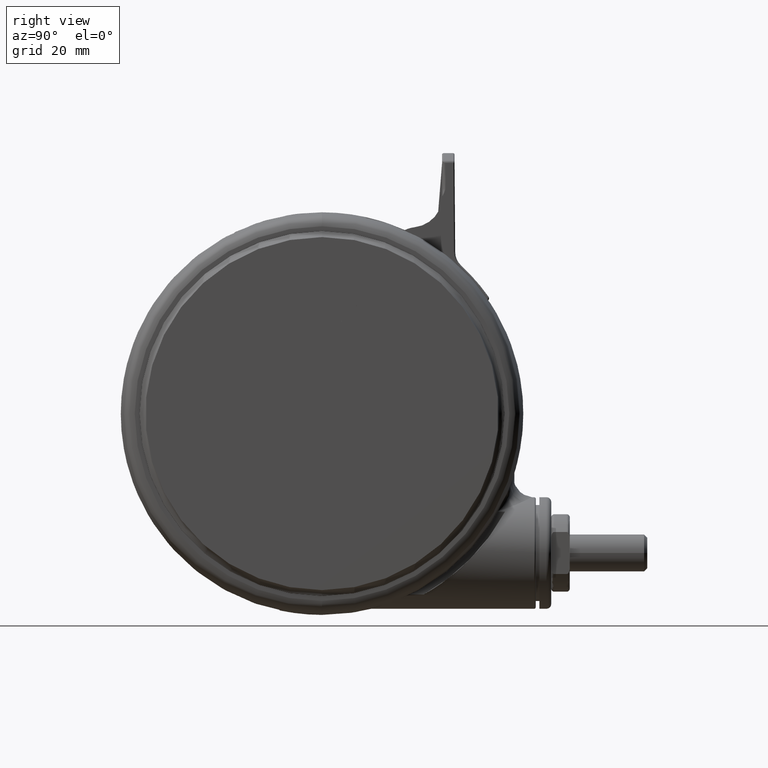
[diagram: clean part render]
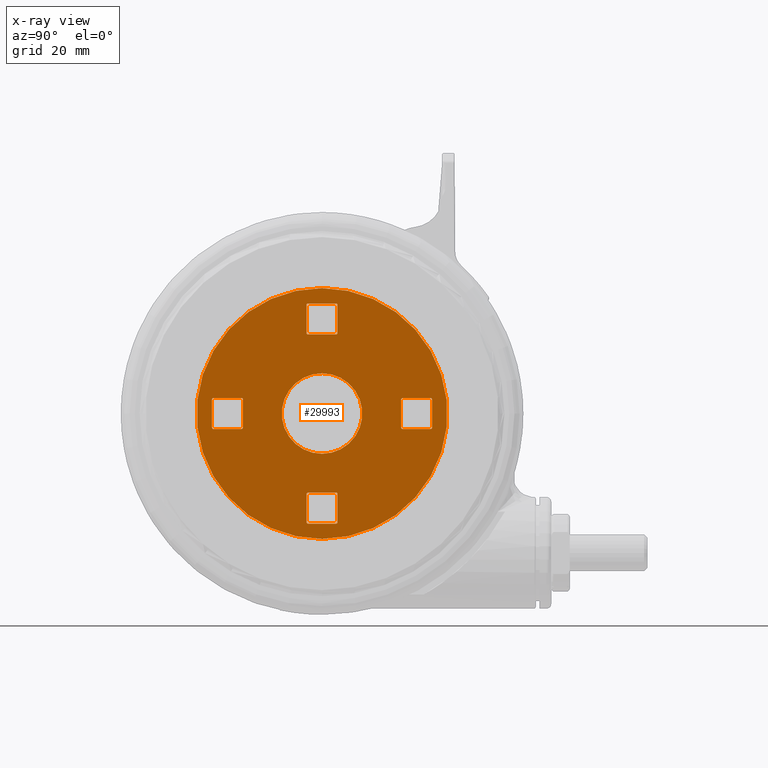
[diagram: x-ray — body ghosted, one internal face saturated and labeled with its STEP entity id]
A machine part, right view, then the same camera in x-ray: the body is ghosted and one INTERNAL B-rep face — a face not visible from any outside direction — is saturated and labeled: STEP entity #29993.
In plain terms, the highlighted planar face has unit normal (-1, 0, 0).
Its self-contained STEP definition (entity closure, byte-faithful):
#452 = VERTEX_POINT ( 'NONE', #48839 ) ;
#802 = EDGE_CURVE ( 'NONE', #37087, #3810, #38036, .T. ) ;
#1422 = DIRECTION ( 'NONE',  ( 0.0000000000000000000, 0.0000000000000000000, -1.000000000000000000 ) ) ;
#1532 = ORIENTED_EDGE ( 'NONE', *, *, #41960, .F. ) ;
#1692 = CARTESIAN_POINT ( 'NONE',  ( -35.54999999999996900, 4.499999999999847200, -3.800000000000094900 ) ) ;
#1732 = DIRECTION ( 'NONE',  ( -1.047444401652940200E-014, 1.000000000000000000, 0.0000000000000000000 ) ) ;
#1802 = CARTESIAN_POINT ( 'NONE',  ( 25.55000000000002900, 4.500000000000241600, -3.800000000000094900 ) ) ;
#1996 = DIRECTION ( 'NONE',  ( -0.0000000000000000000, -0.0000000000000000000, 1.000000000000000000 ) ) ;
#2550 = DIRECTION ( 'NONE',  ( 0.0000000000000000000, 1.000000000000000000, 0.0000000000000000000 ) ) ;
#2583 = VERTEX_POINT ( 'NONE', #78149 ) ;
#2788 = DIRECTION ( 'NONE',  ( 0.0000000000000000000, 0.0000000000000000000, -1.000000000000000000 ) ) ;
#2995 = DIRECTION ( 'NONE',  ( 1.047444401652940200E-014, -1.000000000000000000, 0.0000000000000000000 ) ) ;
#3455 = DIRECTION ( 'NONE',  ( -1.000000000000000000, 0.0000000000000000000, 0.0000000000000000000 ) ) ;
#3511 = CARTESIAN_POINT ( 'NONE',  ( -35.04999999999996900, -4.500000000000157200, -3.800000000000094900 ) ) ;
#3521 = EDGE_LOOP ( 'NONE', ( #49583, #43219, #65999, #64781, #57577, #22795, #81397, #4828 ) ) ;
#3560 = EDGE_CURVE ( 'NONE', #12200, #10718, #71961, .T. ) ;
#3810 = VERTEX_POINT ( 'NONE', #62514 ) ;
#4675 = ORIENTED_EDGE ( 'NONE', *, *, #67955, .T. ) ;
#4720 = LINE ( 'NONE', #15636, #69507 ) ;
#4751 = CARTESIAN_POINT ( 'NONE',  ( 5.000000000000027500, -25.55000000000002900, -3.800000000000094900 ) ) ;
#4828 = ORIENTED_EDGE ( 'NONE', *, *, #38685, .T. ) ;
#5463 = VERTEX_POINT ( 'NONE', #7102 ) ;
#5666 = CARTESIAN_POINT ( 'NONE',  ( -35.04999999999996900, 4.999999999999852600, -3.800000000000094900 ) ) ;
#5682 = CARTESIAN_POINT ( 'NONE',  ( 5.000000000000027500, 35.04999999999996900, -3.800000000000094900 ) ) ;
#5888 = CIRCLE ( 'NONE', #38476, 0.5000000000000004400 ) ;
#5925 = VERTEX_POINT ( 'NONE', #5666 ) ;
#6018 = VERTEX_POINT ( 'NONE', #32024 ) ;
#6350 = DIRECTION ( 'NONE',  ( 0.0000000000000000000, 0.0000000000000000000, -1.000000000000000000 ) ) ;
#6643 = VERTEX_POINT ( 'NONE', #1692 ) ;
#6777 = DIRECTION ( 'NONE',  ( 0.0000000000000000000, 0.0000000000000000000, -1.000000000000000000 ) ) ;
#7102 = CARTESIAN_POINT ( 'NONE',  ( -4.499999999999971600, 35.54999999999996900, -3.800000000000094900 ) ) ;
#7771 = EDGE_CURVE ( 'NONE', #6643, #43909, #70598, .T. ) ;
#7822 = CIRCLE ( 'NONE', #40171, 0.4999999999999995600 ) ;
#8103 = EDGE_CURVE ( 'NONE', #11224, #30143, #49033, .T. ) ;
#8304 = VERTEX_POINT ( 'NONE', #11444 ) ;
#8305 = EDGE_CURVE ( 'NONE', #52568, #3810, #31262, .T. ) ;
#8654 = CARTESIAN_POINT ( 'NONE',  ( -35.54999999999996900, -4.500000000000157200, -3.800000000000094900 ) ) ;
#9040 = DIRECTION ( 'NONE',  ( -0.0000000000000000000, -0.0000000000000000000, 1.000000000000000000 ) ) ;
#9240 = AXIS2_PLACEMENT_3D ( 'NONE', #44043, #6350, #50326 ) ;
#9675 = VECTOR ( 'NONE', #50288, 1000.000000000000000 ) ;
#9816 = DIRECTION ( 'NONE',  ( -1.000000000000000000, 0.0000000000000000000, 0.0000000000000000000 ) ) ;
#9925 = ORIENTED_EDGE ( 'NONE', *, *, #36939, .T. ) ;
#10307 = EDGE_CURVE ( 'NONE', #59261, #69836, #14203, .T. ) ;
#10389 = EDGE_CURVE ( 'NONE', #37290, #47950, #41800, .T. ) ;
#10718 = VERTEX_POINT ( 'NONE', #38493 ) ;
#11224 = VERTEX_POINT ( 'NONE', #63300 ) ;
#11444 = CARTESIAN_POINT ( 'NONE',  ( 35.05000000000002600, -4.999999999999657200, -3.800000000000094900 ) ) ;
#11785 = DIRECTION ( 'NONE',  ( 3.491481338843135300E-015, -1.000000000000000000, 0.0000000000000000000 ) ) ;
#11824 = CARTESIAN_POINT ( 'NONE',  ( -4.499999999999971600, -25.55000000000002900, -3.800000000000094900 ) ) ;
#11826 = CARTESIAN_POINT ( 'NONE',  ( 4.500000000000027500, -25.55000000000002900, -3.800000000000094900 ) ) ;
#12031 = CARTESIAN_POINT ( 'NONE',  ( 4.500000000000027500, -35.05000000000002600, -3.800000000000094900 ) ) ;
#12200 = VERTEX_POINT ( 'NONE', #36375 ) ;
#12468 = AXIS2_PLACEMENT_3D ( 'NONE', #19604, #63478, #25914 ) ;
#13238 = EDGE_CURVE ( 'NONE', #59834, #47950, #51214, .T. ) ;
#13491 = CARTESIAN_POINT ( 'NONE',  ( 35.05000000000002600, 5.000000000000342800, -3.800000000000094900 ) ) ;
#13607 = EDGE_CURVE ( 'NONE', #69705, #80812, #75666, .T. ) ;
#13739 = VERTEX_POINT ( 'NONE', #23502 ) ;
#13769 = DIRECTION ( 'NONE',  ( 0.0000000000000000000, 0.0000000000000000000, -1.000000000000000000 ) ) ;
#14018 = PLANE ( 'NONE',  #35265 ) ;
#14203 = CIRCLE ( 'NONE', #18708, 40.50000000000000000 ) ;
#14652 = ORIENTED_EDGE ( 'NONE', *, *, #79640, .T. ) ;
#14665 = CARTESIAN_POINT ( 'NONE',  ( -4.999999999999972500, 35.54999999999996900, -3.800000000000094900 ) ) ;
#15076 = CIRCLE ( 'NONE', #56823, 0.4999999999999995600 ) ;
#15094 = CARTESIAN_POINT ( 'NONE',  ( -25.54999999999997200, -5.000000000000118100, -3.800000000000094900 ) ) ;
#15636 = CARTESIAN_POINT ( 'NONE',  ( 25.55000000000002900, -4.999999999999758400, -3.800000000000094900 ) ) ;
#16376 = CIRCLE ( 'NONE', #40931, 0.5000000000000004400 ) ;
#16438 = ORIENTED_EDGE ( 'NONE', *, *, #35967, .T. ) ;
#16888 = DIRECTION ( 'NONE',  ( 0.0000000000000000000, 0.0000000000000000000, -1.000000000000000000 ) ) ;
#17186 = CIRCLE ( 'NONE', #9240, 13.00000000000000000 ) ;
#17212 = EDGE_LOOP ( 'NONE', ( #59700, #44111 ) ) ;
#17278 = EDGE_CURVE ( 'NONE', #64095, #5925, #43142, .T. ) ;
#17327 = ORIENTED_EDGE ( 'NONE', *, *, #74828, .T. ) ;
#17463 = ORIENTED_EDGE ( 'NONE', *, *, #17278, .F. ) ;
#17551 = EDGE_CURVE ( 'NONE', #58880, #8304, #4720, .T. ) ;
#17894 = CARTESIAN_POINT ( 'NONE',  ( 35.05000000000002600, 4.500000000000341900, -3.800000000000094900 ) ) ;
#18293 = EDGE_CURVE ( 'NONE', #58880, #74544, #16376, .T. ) ;
#18347 = DIRECTION ( 'NONE',  ( -1.000000000000000000, 0.0000000000000000000, 0.0000000000000000000 ) ) ;
#18708 = AXIS2_PLACEMENT_3D ( 'NONE', #39657, #1996, #45980 ) ;
#18733 = ORIENTED_EDGE ( 'NONE', *, *, #41302, .T. ) ;
#19053 = AXIS2_PLACEMENT_3D ( 'NONE', #12031, #55947, #18347 ) ;
#19147 = EDGE_CURVE ( 'NONE', #69836, #59261, #23291, .T. ) ;
#19247 = FACE_BOUND ( 'NONE', #24161, .T. ) ;
#19604 = CARTESIAN_POINT ( 'NONE',  ( 35.05000000000002600, -4.499999999999657200, -3.800000000000094900 ) ) ;
#20367 = CARTESIAN_POINT ( 'NONE',  ( 2.775557561562891400E-014, 53.99999999999997200, -3.800000000000094900 ) ) ;
#20428 = CARTESIAN_POINT ( 'NONE',  ( 5.000000000000027500, -35.05000000000002600, -3.800000000000094900 ) ) ;
#21229 = FACE_OUTER_BOUND ( 'NONE', #17212, .T. ) ;
#21441 = CARTESIAN_POINT ( 'NONE',  ( -4.499999999999971600, 26.04999999999997200, -3.800000000000094900 ) ) ;
#22254 = VERTEX_POINT ( 'NONE', #39550 ) ;
#22795 = ORIENTED_EDGE ( 'NONE', *, *, #8103, .T. ) ;
#23291 = CIRCLE ( 'NONE', #78289, 40.50000000000000000 ) ;
#23344 = VECTOR ( 'NONE', #29812, 1000.000000000000000 ) ;
#23502 = CARTESIAN_POINT ( 'NONE',  ( -4.999999999999972500, -35.05000000000002600, -3.800000000000094900 ) ) ;
#23517 = CARTESIAN_POINT ( 'NONE',  ( -35.54999999999996900, -5.000000000000158100, -3.800000000000094900 ) ) ;
#23847 = CARTESIAN_POINT ( 'NONE',  ( -4.999999999999972500, 25.54999999999997200, -3.800000000000094900 ) ) ;
#23868 = EDGE_CURVE ( 'NONE', #52568, #74544, #72974, .T. ) ;
#24161 = EDGE_LOOP ( 'NONE', ( #1532, #32984, #46269, #62462, #78440, #4675, #26269, #56881 ) ) ;
#24215 = LINE ( 'NONE', #14665, #36982 ) ;
#24245 = DIRECTION ( 'NONE',  ( -1.000000000000000000, 0.0000000000000000000, 0.0000000000000000000 ) ) ;
#24408 = AXIS2_PLACEMENT_3D ( 'NONE', #36710, #80633, #43068 ) ;
#24495 = CARTESIAN_POINT ( 'NONE',  ( 4.500000000000027500, 26.04999999999997200, -3.800000000000094900 ) ) ;
#24917 = DIRECTION ( 'NONE',  ( 0.0000000000000000000, 0.0000000000000000000, -1.000000000000000000 ) ) ;
#25312 = CARTESIAN_POINT ( 'NONE',  ( -25.54999999999997200, 4.999999999999881900, -3.800000000000094900 ) ) ;
#25757 = CARTESIAN_POINT ( 'NONE',  ( -4.499999999999971600, 35.04999999999996900, -3.800000000000094900 ) ) ;
#25798 = VERTEX_POINT ( 'NONE', #20428 ) ;
#25914 = DIRECTION ( 'NONE',  ( -1.000000000000000000, 0.0000000000000000000, 0.0000000000000000000 ) ) ;
#26269 = ORIENTED_EDGE ( 'NONE', *, *, #30603, .F. ) ;
#26699 = ORIENTED_EDGE ( 'NONE', *, *, #23868, .F. ) ;
#26953 = CARTESIAN_POINT ( 'NONE',  ( 40.50000000000002800, -2.276513990910344700E-014, -3.800000000000094900 ) ) ;
#27552 = EDGE_CURVE ( 'NONE', #74339, #39618, #56652, .T. ) ;
#27742 = DIRECTION ( 'NONE',  ( -1.000000000000000000, 0.0000000000000000000, 0.0000000000000000000 ) ) ;
#28070 = LINE ( 'NONE', #4751, #40894 ) ;
#29251 = VERTEX_POINT ( 'NONE', #49605 ) ;
#29358 = AXIS2_PLACEMENT_3D ( 'NONE', #3511, #47505, #9816 ) ;
#29530 = DIRECTION ( 'NONE',  ( -1.000000000000000000, 0.0000000000000000000, 0.0000000000000000000 ) ) ;
#29812 = DIRECTION ( 'NONE',  ( 1.000000000000000000, 0.0000000000000000000, 0.0000000000000000000 ) ) ;
#29993 = ADVANCED_FACE ( 'NONE', ( #21229, #67384, #35993, #52666, #19247, #50686 ), #14018, .F. ) ;
#30143 = VERTEX_POINT ( 'NONE', #11824 ) ;
#30603 = EDGE_CURVE ( 'NONE', #12200, #29251, #53531, .T. ) ;
#30823 = DIRECTION ( 'NONE',  ( -1.000000000000000000, 0.0000000000000000000, 0.0000000000000000000 ) ) ;
#31130 = CARTESIAN_POINT ( 'NONE',  ( 26.05000000000002900, -4.999999999999758400, -3.800000000000094900 ) ) ;
#31262 = CIRCLE ( 'NONE', #24408, 0.5000000000000004400 ) ;
#32024 = CARTESIAN_POINT ( 'NONE',  ( 5.000000000000027500, -26.05000000000002900, -3.800000000000094900 ) ) ;
#32094 = DIRECTION ( 'NONE',  ( -1.000000000000000000, 0.0000000000000000000, 0.0000000000000000000 ) ) ;
#32726 = CARTESIAN_POINT ( 'NONE',  ( -35.04999999999996900, -5.000000000000158100, -3.800000000000094900 ) ) ;
#32932 = CARTESIAN_POINT ( 'NONE',  ( -35.04999999999996900, 4.499999999999852600, -3.800000000000094900 ) ) ;
#32984 = ORIENTED_EDGE ( 'NONE', *, *, #55808, .T. ) ;
#33062 = CARTESIAN_POINT ( 'NONE',  ( 35.55000000000002600, -4.999999999999657200, -3.800000000000094900 ) ) ;
#33938 = CARTESIAN_POINT ( 'NONE',  ( 35.55000000000002600, 5.000000000000352600, -3.800000000000094900 ) ) ;
#34017 = AXIS2_PLACEMENT_3D ( 'NONE', #17894, #61800, #24245 ) ;
#34178 = CIRCLE ( 'NONE', #49677, 0.5000000000000004400 ) ;
#34838 = DIRECTION ( 'NONE',  ( 0.0000000000000000000, 0.0000000000000000000, -1.000000000000000000 ) ) ;
#35265 = AXIS2_PLACEMENT_3D ( 'NONE', #20367, #1422, #64239 ) ;
#35601 = LINE ( 'NONE', #54508, #66981 ) ;
#35967 = EDGE_CURVE ( 'NONE', #36801, #43909, #48842, .T. ) ;
#35993 = FACE_BOUND ( 'NONE', #3521, .T. ) ;
#36150 = CARTESIAN_POINT ( 'NONE',  ( -4.999999999999972500, -35.55000000000002600, -3.800000000000094900 ) ) ;
#36375 = CARTESIAN_POINT ( 'NONE',  ( -4.499999999999971600, 25.54999999999997200, -3.800000000000094900 ) ) ;
#36710 = CARTESIAN_POINT ( 'NONE',  ( 26.05000000000002900, 4.500000000000252200, -3.800000000000094900 ) ) ;
#36801 = VERTEX_POINT ( 'NONE', #32726 ) ;
#36939 = EDGE_CURVE ( 'NONE', #2583, #54501, #62454, .T. ) ;
#36982 = VECTOR ( 'NONE', #46028, 1000.000000000000000 ) ;
#37087 = VERTEX_POINT ( 'NONE', #13491 ) ;
#37214 = CARTESIAN_POINT ( 'NONE',  ( 26.05000000000002900, -4.499999999999752200, -3.800000000000094900 ) ) ;
#37280 = CARTESIAN_POINT ( 'NONE',  ( 4.500000000000027500, 35.54999999999996900, -3.800000000000094900 ) ) ;
#37290 = VERTEX_POINT ( 'NONE', #65901 ) ;
#37954 = CIRCLE ( 'NONE', #55387, 0.4999999999999995600 ) ;
#38036 = LINE ( 'NONE', #33938, #52770 ) ;
#38476 = AXIS2_PLACEMENT_3D ( 'NONE', #54497, #16888, #60789 ) ;
#38493 = CARTESIAN_POINT ( 'NONE',  ( -4.999999999999972500, 26.04999999999997200, -3.800000000000094900 ) ) ;
#38685 = EDGE_CURVE ( 'NONE', #43109, #6018, #15076, .T. ) ;
#38865 = AXIS2_PLACEMENT_3D ( 'NONE', #21441, #65326, #27742 ) ;
#39061 = CARTESIAN_POINT ( 'NONE',  ( 5.000000000000027500, -35.55000000000002600, -3.800000000000094900 ) ) ;
#39075 = ORIENTED_EDGE ( 'NONE', *, *, #8305, .T. ) ;
#39102 = CARTESIAN_POINT ( 'NONE',  ( -4.999999999999972500, -25.55000000000002900, -3.800000000000094900 ) ) ;
#39254 = DIRECTION ( 'NONE',  ( -1.000000000000000000, 0.0000000000000000000, 0.0000000000000000000 ) ) ;
#39550 = CARTESIAN_POINT ( 'NONE',  ( 35.55000000000002600, -4.499999999999652700, -3.800000000000094900 ) ) ;
#39618 = VERTEX_POINT ( 'NONE', #51300 ) ;
#39624 = VECTOR ( 'NONE', #2995, 1000.000000000000000 ) ;
#39657 = CARTESIAN_POINT ( 'NONE',  ( 2.775557561562891400E-014, -2.775557561562891400E-014, -3.800000000000094900 ) ) ;
#39803 = VECTOR ( 'NONE', #2550, 1000.000000000000000 ) ;
#40171 = AXIS2_PLACEMENT_3D ( 'NONE', #25757, #69648, #32094 ) ;
#40432 = CARTESIAN_POINT ( 'NONE',  ( -26.04999999999997200, -4.500000000000127000, -3.800000000000094900 ) ) ;
#40660 = CARTESIAN_POINT ( 'NONE',  ( 25.55000000000002900, 5.000000000000242500, -3.800000000000094900 ) ) ;
#40894 = VECTOR ( 'NONE', #61267, 1000.000000000000000 ) ;
#40931 = AXIS2_PLACEMENT_3D ( 'NONE', #37214, #81135, #43546 ) ;
#40964 = EDGE_LOOP ( 'NONE', ( #75458, #16438, #50163, #18733, #17463, #17327, #70532, #9925 ) ) ;
#41126 = DIRECTION ( 'NONE',  ( 0.0000000000000000000, 0.0000000000000000000, -1.000000000000000000 ) ) ;
#41302 = EDGE_CURVE ( 'NONE', #6643, #5925, #34178, .T. ) ;
#41800 = LINE ( 'NONE', #77750, #39803 ) ;
#41960 = EDGE_CURVE ( 'NONE', #71388, #10718, #24215, .T. ) ;
#42728 = EDGE_CURVE ( 'NONE', #80812, #69705, #17186, .T. ) ;
#43068 = DIRECTION ( 'NONE',  ( -1.000000000000000000, 0.0000000000000000000, 0.0000000000000000000 ) ) ;
#43109 = VERTEX_POINT ( 'NONE', #11826 ) ;
#43142 = LINE ( 'NONE', #25312, #9675 ) ;
#43219 = ORIENTED_EDGE ( 'NONE', *, *, #55687, .T. ) ;
#43546 = DIRECTION ( 'NONE',  ( -1.000000000000000000, 0.0000000000000000000, 0.0000000000000000000 ) ) ;
#43909 = VERTEX_POINT ( 'NONE', #8654 ) ;
#44043 = CARTESIAN_POINT ( 'NONE',  ( 2.775557561562891400E-014, -2.775557561562891400E-014, -3.800000000000094900 ) ) ;
#44111 = ORIENTED_EDGE ( 'NONE', *, *, #19147, .T. ) ;
#44471 = CARTESIAN_POINT ( 'NONE',  ( -4.499999999999971600, -35.05000000000002600, -3.800000000000094900 ) ) ;
#44549 = ORIENTED_EDGE ( 'NONE', *, *, #802, .F. ) ;
#44570 = EDGE_CURVE ( 'NONE', #59834, #5463, #35601, .T. ) ;
#45475 = VECTOR ( 'NONE', #54786, 1000.000000000000000 ) ;
#45863 = AXIS2_PLACEMENT_3D ( 'NONE', #62485, #24917, #68786 ) ;
#45980 = DIRECTION ( 'NONE',  ( -1.000000000000000000, 0.0000000000000000000, 0.0000000000000000000 ) ) ;
#46028 = DIRECTION ( 'NONE',  ( 8.673617379884039200E-017, -1.000000000000000000, 0.0000000000000000000 ) ) ;
#46220 = ORIENTED_EDGE ( 'NONE', *, *, #42728, .T. ) ;
#46269 = ORIENTED_EDGE ( 'NONE', *, *, #44570, .F. ) ;
#46705 = CARTESIAN_POINT ( 'NONE',  ( 2.775557561562891400E-014, -2.775557561562891400E-014, -3.800000000000094900 ) ) ;
#46746 = DIRECTION ( 'NONE',  ( -1.000000000000000000, 0.0000000000000000000, 0.0000000000000000000 ) ) ;
#47067 = AXIS2_PLACEMENT_3D ( 'NONE', #72392, #34838, #78745 ) ;
#47094 = CARTESIAN_POINT ( 'NONE',  ( -26.04999999999997200, 4.999999999999881900, -3.800000000000094900 ) ) ;
#47129 = CIRCLE ( 'NONE', #73047, 0.4999999999999995600 ) ;
#47155 = EDGE_CURVE ( 'NONE', #22254, #452, #49098, .T. ) ;
#47505 = DIRECTION ( 'NONE',  ( 0.0000000000000000000, 0.0000000000000000000, -1.000000000000000000 ) ) ;
#47950 = VERTEX_POINT ( 'NONE', #5682 ) ;
#48839 = CARTESIAN_POINT ( 'NONE',  ( 35.55000000000002600, 4.500000000000351700, -3.800000000000094900 ) ) ;
#48842 = CIRCLE ( 'NONE', #29358, 0.5000000000000004400 ) ;
#49033 = CIRCLE ( 'NONE', #47067, 0.4999999999999995600 ) ;
#49098 = LINE ( 'NONE', #33062, #78532 ) ;
#49583 = ORIENTED_EDGE ( 'NONE', *, *, #58585, .F. ) ;
#49605 = CARTESIAN_POINT ( 'NONE',  ( 4.500000000000027500, 25.54999999999997200, -3.800000000000094900 ) ) ;
#49610 = ORIENTED_EDGE ( 'NONE', *, *, #58370, .T. ) ;
#49677 = AXIS2_PLACEMENT_3D ( 'NONE', #32932, #76809, #39254 ) ;
#50163 = ORIENTED_EDGE ( 'NONE', *, *, #7771, .F. ) ;
#50288 = DIRECTION ( 'NONE',  ( -1.000000000000000000, -3.491481338843135300E-015, 0.0000000000000000000 ) ) ;
#50326 = DIRECTION ( 'NONE',  ( -1.000000000000000000, 0.0000000000000000000, 0.0000000000000000000 ) ) ;
#50686 = FACE_BOUND ( 'NONE', #74065, .T. ) ;
#50743 = DIRECTION ( 'NONE',  ( -1.000000000000000000, 0.0000000000000000000, 0.0000000000000000000 ) ) ;
#51214 = CIRCLE ( 'NONE', #45863, 0.4999999999999995600 ) ;
#51300 = CARTESIAN_POINT ( 'NONE',  ( 4.500000000000027500, -35.55000000000002600, -3.800000000000094900 ) ) ;
#51427 = CARTESIAN_POINT ( 'NONE',  ( 4.500000000000027500, -26.05000000000002900, -3.800000000000094900 ) ) ;
#51428 = DIRECTION ( 'NONE',  ( 0.0000000000000000000, -1.000000000000000000, 0.0000000000000000000 ) ) ;
#52568 = VERTEX_POINT ( 'NONE', #1802 ) ;
#52666 = FACE_BOUND ( 'NONE', #40964, .T. ) ;
#52770 = VECTOR ( 'NONE', #71468, 1000.000000000000000 ) ;
#52989 = DIRECTION ( 'NONE',  ( -1.000000000000000000, 0.0000000000000000000, 0.0000000000000000000 ) ) ;
#53109 = EDGE_CURVE ( 'NONE', #11224, #13739, #55268, .T. ) ;
#53342 = VECTOR ( 'NONE', #51428, 1000.000000000000000 ) ;
#53531 = LINE ( 'NONE', #23847, #70171 ) ;
#53996 = CARTESIAN_POINT ( 'NONE',  ( -12.99999999999997200, -2.775557561562891400E-014, -3.800000000000094900 ) ) ;
#54372 = CARTESIAN_POINT ( 'NONE',  ( -40.49999999999997200, -2.775557561562891400E-014, -3.800000000000094900 ) ) ;
#54497 = CARTESIAN_POINT ( 'NONE',  ( -26.04999999999997200, 4.499999999999881900, -3.800000000000094900 ) ) ;
#54501 = VERTEX_POINT ( 'NONE', #73203 ) ;
#54508 = CARTESIAN_POINT ( 'NONE',  ( 5.000000000000027500, 35.54999999999996900, -3.800000000000094900 ) ) ;
#54786 = DIRECTION ( 'NONE',  ( 1.000000000000000000, 3.578217512641975300E-015, 0.0000000000000000000 ) ) ;
#55169 = EDGE_LOOP ( 'NONE', ( #44549, #49610, #69177, #14652, #59747, #74768, #26699, #39075 ) ) ;
#55268 = LINE ( 'NONE', #39102, #53342 ) ;
#55387 = AXIS2_PLACEMENT_3D ( 'NONE', #44471, #6777, #50743 ) ;
#55687 = EDGE_CURVE ( 'NONE', #25798, #39618, #80565, .T. ) ;
#55808 = EDGE_CURVE ( 'NONE', #71388, #5463, #7822, .T. ) ;
#55947 = DIRECTION ( 'NONE',  ( 0.0000000000000000000, 0.0000000000000000000, -1.000000000000000000 ) ) ;
#56652 = LINE ( 'NONE', #36150, #23344 ) ;
#56823 = AXIS2_PLACEMENT_3D ( 'NONE', #51427, #13769, #57693 ) ;
#56881 = ORIENTED_EDGE ( 'NONE', *, *, #3560, .T. ) ;
#57235 = VECTOR ( 'NONE', #71608, 1000.000000000000000 ) ;
#57245 = CARTESIAN_POINT ( 'NONE',  ( 25.55000000000002900, -4.499999999999757500, -3.800000000000094900 ) ) ;
#57495 = CIRCLE ( 'NONE', #34017, 0.5000000000000004400 ) ;
#57577 = ORIENTED_EDGE ( 'NONE', *, *, #53109, .F. ) ;
#57693 = DIRECTION ( 'NONE',  ( -1.000000000000000000, 0.0000000000000000000, 0.0000000000000000000 ) ) ;
#57915 = DIRECTION ( 'NONE',  ( -8.673617379884039200E-017, 1.000000000000000000, 0.0000000000000000000 ) ) ;
#58359 = EDGE_CURVE ( 'NONE', #43109, #30143, #28070, .T. ) ;
#58370 = EDGE_CURVE ( 'NONE', #37087, #452, #57495, .T. ) ;
#58585 = EDGE_CURVE ( 'NONE', #25798, #6018, #77134, .T. ) ;
#58880 = VERTEX_POINT ( 'NONE', #31130 ) ;
#59261 = VERTEX_POINT ( 'NONE', #54372 ) ;
#59700 = ORIENTED_EDGE ( 'NONE', *, *, #10307, .T. ) ;
#59747 = ORIENTED_EDGE ( 'NONE', *, *, #17551, .F. ) ;
#59834 = VERTEX_POINT ( 'NONE', #37280 ) ;
#60437 = VECTOR ( 'NONE', #57915, 1000.000000000000000 ) ;
#60789 = DIRECTION ( 'NONE',  ( -1.000000000000000000, 0.0000000000000000000, 0.0000000000000000000 ) ) ;
#61267 = DIRECTION ( 'NONE',  ( -1.000000000000000000, 0.0000000000000000000, 0.0000000000000000000 ) ) ;
#61800 = DIRECTION ( 'NONE',  ( 0.0000000000000000000, 0.0000000000000000000, -1.000000000000000000 ) ) ;
#62454 = CIRCLE ( 'NONE', #77782, 0.5000000000000004400 ) ;
#62462 = ORIENTED_EDGE ( 'NONE', *, *, #13238, .T. ) ;
#62485 = CARTESIAN_POINT ( 'NONE',  ( 4.500000000000027500, 35.04999999999996900, -3.800000000000094900 ) ) ;
#62514 = CARTESIAN_POINT ( 'NONE',  ( 26.05000000000002900, 5.000000000000252200, -3.800000000000094900 ) ) ;
#63300 = CARTESIAN_POINT ( 'NONE',  ( -4.999999999999972500, -26.05000000000002900, -3.800000000000094900 ) ) ;
#63478 = DIRECTION ( 'NONE',  ( 0.0000000000000000000, 0.0000000000000000000, -1.000000000000000000 ) ) ;
#64095 = VERTEX_POINT ( 'NONE', #47094 ) ;
#64239 = DIRECTION ( 'NONE',  ( -1.000000000000000000, 0.0000000000000000000, 0.0000000000000000000 ) ) ;
#64627 = EDGE_CURVE ( 'NONE', #2583, #77511, #73958, .T. ) ;
#64781 = ORIENTED_EDGE ( 'NONE', *, *, #77006, .T. ) ;
#65013 = CIRCLE ( 'NONE', #12468, 0.5000000000000004400 ) ;
#65326 = DIRECTION ( 'NONE',  ( 0.0000000000000000000, 0.0000000000000000000, -1.000000000000000000 ) ) ;
#65901 = CARTESIAN_POINT ( 'NONE',  ( 5.000000000000027500, 26.04999999999997200, -3.800000000000094900 ) ) ;
#65999 = ORIENTED_EDGE ( 'NONE', *, *, #27552, .F. ) ;
#66981 = VECTOR ( 'NONE', #29530, 1000.000000000000000 ) ;
#67226 = CARTESIAN_POINT ( 'NONE',  ( -4.499999999999971600, -35.55000000000002600, -3.800000000000094900 ) ) ;
#67384 = FACE_BOUND ( 'NONE', #55169, .T. ) ;
#67731 = DIRECTION ( 'NONE',  ( 1.000000000000000000, 0.0000000000000000000, 0.0000000000000000000 ) ) ;
#67955 = EDGE_CURVE ( 'NONE', #37290, #29251, #47129, .T. ) ;
#68388 = DIRECTION ( 'NONE',  ( 0.0000000000000000000, 0.0000000000000000000, -1.000000000000000000 ) ) ;
#68628 = VECTOR ( 'NONE', #11785, 1000.000000000000000 ) ;
#68786 = DIRECTION ( 'NONE',  ( -1.000000000000000000, 0.0000000000000000000, 0.0000000000000000000 ) ) ;
#69177 = ORIENTED_EDGE ( 'NONE', *, *, #47155, .F. ) ;
#69507 = VECTOR ( 'NONE', #78541, 1000.000000000000000 ) ;
#69520 = CARTESIAN_POINT ( 'NONE',  ( 13.00000000000002700, -2.616353477673735300E-014, -3.800000000000094900 ) ) ;
#69648 = DIRECTION ( 'NONE',  ( 0.0000000000000000000, 0.0000000000000000000, -1.000000000000000000 ) ) ;
#69705 = VERTEX_POINT ( 'NONE', #69520 ) ;
#69836 = VERTEX_POINT ( 'NONE', #26953 ) ;
#70171 = VECTOR ( 'NONE', #67731, 1000.000000000000000 ) ;
#70532 = ORIENTED_EDGE ( 'NONE', *, *, #64627, .F. ) ;
#70598 = LINE ( 'NONE', #80727, #68628 ) ;
#70732 = CARTESIAN_POINT ( 'NONE',  ( -4.999999999999972500, 35.04999999999996900, -3.800000000000094900 ) ) ;
#71388 = VERTEX_POINT ( 'NONE', #70732 ) ;
#71468 = DIRECTION ( 'NONE',  ( -1.000000000000000000, -1.056118019032824000E-014, 0.0000000000000000000 ) ) ;
#71608 = DIRECTION ( 'NONE',  ( -3.491481338843135300E-015, 1.000000000000000000, 0.0000000000000000000 ) ) ;
#71961 = CIRCLE ( 'NONE', #38865, 0.4999999999999995600 ) ;
#72392 = CARTESIAN_POINT ( 'NONE',  ( -4.499999999999971600, -26.05000000000002900, -3.800000000000094900 ) ) ;
#72974 = LINE ( 'NONE', #40660, #39624 ) ;
#73047 = AXIS2_PLACEMENT_3D ( 'NONE', #24495, #68388, #30823 ) ;
#73203 = CARTESIAN_POINT ( 'NONE',  ( -26.04999999999997200, -5.000000000000127900, -3.800000000000094900 ) ) ;
#73687 = AXIS2_PLACEMENT_3D ( 'NONE', #78695, #41126, #3455 ) ;
#73958 = LINE ( 'NONE', #15094, #57235 ) ;
#74065 = EDGE_LOOP ( 'NONE', ( #46220, #74328 ) ) ;
#74328 = ORIENTED_EDGE ( 'NONE', *, *, #13607, .T. ) ;
#74339 = VERTEX_POINT ( 'NONE', #67226 ) ;
#74544 = VERTEX_POINT ( 'NONE', #57245 ) ;
#74767 = CARTESIAN_POINT ( 'NONE',  ( -25.54999999999997200, 4.499999999999877400, -3.800000000000094900 ) ) ;
#74768 = ORIENTED_EDGE ( 'NONE', *, *, #18293, .T. ) ;
#74828 = EDGE_CURVE ( 'NONE', #64095, #77511, #5888, .T. ) ;
#75458 = ORIENTED_EDGE ( 'NONE', *, *, #79453, .F. ) ;
#75666 = CIRCLE ( 'NONE', #73687, 13.00000000000000000 ) ;
#76809 = DIRECTION ( 'NONE',  ( 0.0000000000000000000, 0.0000000000000000000, -1.000000000000000000 ) ) ;
#77006 = EDGE_CURVE ( 'NONE', #74339, #13739, #37954, .T. ) ;
#77134 = LINE ( 'NONE', #39061, #60437 ) ;
#77511 = VERTEX_POINT ( 'NONE', #74767 ) ;
#77750 = CARTESIAN_POINT ( 'NONE',  ( 5.000000000000027500, 25.54999999999997200, -3.800000000000094900 ) ) ;
#77782 = AXIS2_PLACEMENT_3D ( 'NONE', #40432, #2788, #46746 ) ;
#78149 = CARTESIAN_POINT ( 'NONE',  ( -25.54999999999997200, -4.500000000000117200, -3.800000000000094900 ) ) ;
#78289 = AXIS2_PLACEMENT_3D ( 'NONE', #46705, #9040, #52989 ) ;
#78440 = ORIENTED_EDGE ( 'NONE', *, *, #10389, .F. ) ;
#78532 = VECTOR ( 'NONE', #1732, 1000.000000000000000 ) ;
#78541 = DIRECTION ( 'NONE',  ( 1.000000000000000000, 1.047444401652940200E-014, 0.0000000000000000000 ) ) ;
#78695 = CARTESIAN_POINT ( 'NONE',  ( 2.775557561562891400E-014, -2.775557561562891400E-014, -3.800000000000094900 ) ) ;
#78745 = DIRECTION ( 'NONE',  ( -1.000000000000000000, 0.0000000000000000000, 0.0000000000000000000 ) ) ;
#78872 = LINE ( 'NONE', #23517, #45475 ) ;
#79453 = EDGE_CURVE ( 'NONE', #36801, #54501, #78872, .T. ) ;
#79640 = EDGE_CURVE ( 'NONE', #22254, #8304, #65013, .T. ) ;
#80565 = CIRCLE ( 'NONE', #19053, 0.4999999999999995600 ) ;
#80633 = DIRECTION ( 'NONE',  ( 0.0000000000000000000, 0.0000000000000000000, -1.000000000000000000 ) ) ;
#80727 = CARTESIAN_POINT ( 'NONE',  ( -35.54999999999996900, 4.999999999999852600, -3.800000000000094900 ) ) ;
#80812 = VERTEX_POINT ( 'NONE', #53996 ) ;
#81135 = DIRECTION ( 'NONE',  ( 0.0000000000000000000, 0.0000000000000000000, -1.000000000000000000 ) ) ;
#81397 = ORIENTED_EDGE ( 'NONE', *, *, #58359, .F. ) ;